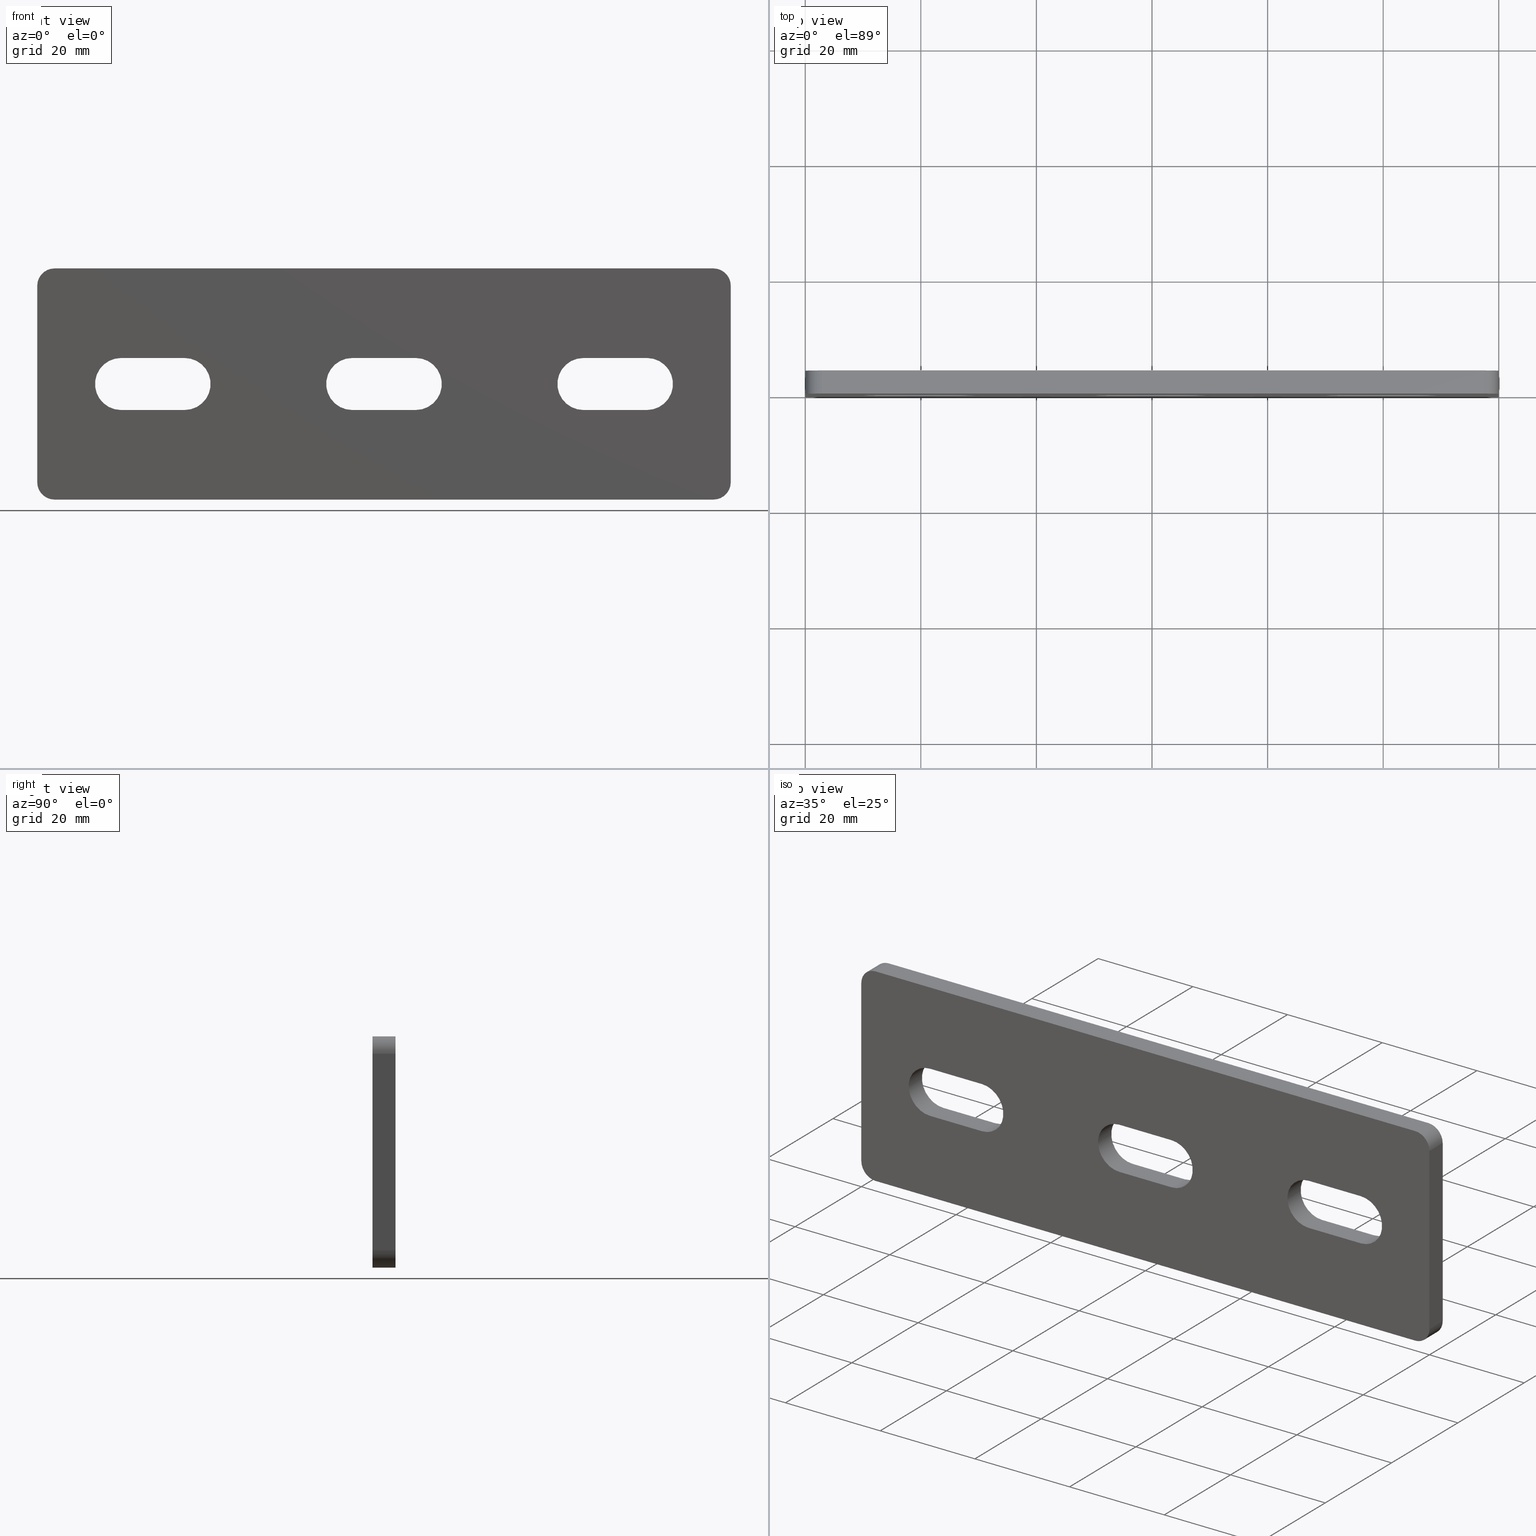
[diagram: canonical four-view strip — front | top / right | iso, engineering-drawing reading convention]
A machine part, canonical four-view strip (front | top / right | iso — engineering-drawing reading convention). The complete STEP part file that produces these views, byte-faithful:
ISO-10303-21;
HEADER;
/* Generated by software containing ST-Developer
 * from STEP Tools, Inc. (www.steptools.com) 
 */

FILE_DESCRIPTION(
/* description */ ('PIASTRA GIUNZIONE A 3 FORI ZINCATA '),
/* implementation_level */ '2;1');

FILE_NAME(
/* name */ 
'C:\\Users\\tecnico7\\Desktop\\NUOVI DISEGNI 3D\\DPSXX0001710.stp',
/* time_stamp */ '2022-11-21T10:47:58+01:00',
/* author */ ('tecnico7'),
/* organization */ (''),
/* preprocessor_version */ 'ST-DEVELOPER v18.1',
/* originating_system */ 'Autodesk Inventor 2022',
/* authorisation */ '');

FILE_SCHEMA (('AUTOMOTIVE_DESIGN { 1 0 10303 214 3 1 1 }'));
ENDSEC;

DATA;
#10=MECHANICAL_DESIGN_GEOMETRIC_PRESENTATION_REPRESENTATION('',(#13),#752);
#11=SHAPE_REPRESENTATION_RELATIONSHIP('SRR','None',#759,#12);
#12=ADVANCED_BREP_SHAPE_REPRESENTATION('',(#14),#751);
#13=STYLED_ITEM('',(#768),#14);
#14=MANIFOLD_SOLID_BREP('Solido1',#435);
#15=CYLINDRICAL_SURFACE('',#484,4.5);
#16=CYLINDRICAL_SURFACE('',#486,4.5);
#17=CYLINDRICAL_SURFACE('',#488,4.5);
#18=CYLINDRICAL_SURFACE('',#490,4.5);
#19=CYLINDRICAL_SURFACE('',#492,4.50000000000001);
#20=CYLINDRICAL_SURFACE('',#494,4.50000000000001);
#21=CYLINDRICAL_SURFACE('',#496,3.);
#22=CYLINDRICAL_SURFACE('',#497,3.);
#23=CYLINDRICAL_SURFACE('',#498,3.);
#24=CYLINDRICAL_SURFACE('',#499,3.);
#25=FACE_BOUND('',#54,.T.);
#26=FACE_BOUND('',#55,.T.);
#27=FACE_BOUND('',#56,.T.);
#28=FACE_BOUND('',#58,.T.);
#29=FACE_BOUND('',#59,.T.);
#30=FACE_BOUND('',#60,.T.);
#31=FACE_OUTER_BOUND('',#53,.T.);
#32=FACE_OUTER_BOUND('',#57,.T.);
#33=FACE_OUTER_BOUND('',#61,.T.);
#34=FACE_OUTER_BOUND('',#62,.T.);
#35=FACE_OUTER_BOUND('',#63,.T.);
#36=FACE_OUTER_BOUND('',#64,.T.);
#37=FACE_OUTER_BOUND('',#65,.T.);
#38=FACE_OUTER_BOUND('',#66,.T.);
#39=FACE_OUTER_BOUND('',#67,.T.);
#40=FACE_OUTER_BOUND('',#68,.T.);
#41=FACE_OUTER_BOUND('',#69,.T.);
#42=FACE_OUTER_BOUND('',#70,.T.);
#43=FACE_OUTER_BOUND('',#71,.T.);
#44=FACE_OUTER_BOUND('',#72,.T.);
#45=FACE_OUTER_BOUND('',#73,.T.);
#46=FACE_OUTER_BOUND('',#74,.T.);
#47=FACE_OUTER_BOUND('',#75,.T.);
#48=FACE_OUTER_BOUND('',#76,.T.);
#49=FACE_OUTER_BOUND('',#77,.T.);
#50=FACE_OUTER_BOUND('',#78,.T.);
#51=FACE_OUTER_BOUND('',#79,.T.);
#52=FACE_OUTER_BOUND('',#80,.T.);
#53=EDGE_LOOP('',(#281,#282,#283,#284,#285,#286,#287,#288));
#54=EDGE_LOOP('',(#289,#290,#291,#292));
#55=EDGE_LOOP('',(#293,#294,#295,#296));
#56=EDGE_LOOP('',(#297,#298,#299,#300));
#57=EDGE_LOOP('',(#301,#302,#303,#304,#305,#306,#307,#308));
#58=EDGE_LOOP('',(#309,#310,#311,#312));
#59=EDGE_LOOP('',(#313,#314,#315,#316));
#60=EDGE_LOOP('',(#317,#318,#319,#320));
#61=EDGE_LOOP('',(#321,#322,#323,#324));
#62=EDGE_LOOP('',(#325,#326,#327,#328));
#63=EDGE_LOOP('',(#329,#330,#331,#332));
#64=EDGE_LOOP('',(#333,#334,#335,#336));
#65=EDGE_LOOP('',(#337,#338,#339,#340));
#66=EDGE_LOOP('',(#341,#342,#343,#344));
#67=EDGE_LOOP('',(#345,#346,#347,#348));
#68=EDGE_LOOP('',(#349,#350,#351,#352));
#69=EDGE_LOOP('',(#353,#354,#355,#356));
#70=EDGE_LOOP('',(#357,#358,#359,#360));
#71=EDGE_LOOP('',(#361,#362,#363,#364));
#72=EDGE_LOOP('',(#365,#366,#367,#368));
#73=EDGE_LOOP('',(#369,#370,#371,#372));
#74=EDGE_LOOP('',(#373,#374,#375,#376));
#75=EDGE_LOOP('',(#377,#378,#379,#380));
#76=EDGE_LOOP('',(#381,#382,#383,#384));
#77=EDGE_LOOP('',(#385,#386,#387,#388));
#78=EDGE_LOOP('',(#389,#390,#391,#392));
#79=EDGE_LOOP('',(#393,#394,#395,#396));
#80=EDGE_LOOP('',(#397,#398,#399,#400));
#81=CIRCLE('',#459,3.);
#82=CIRCLE('',#460,3.);
#83=CIRCLE('',#461,3.);
#84=CIRCLE('',#462,3.);
#85=CIRCLE('',#463,4.5);
#86=CIRCLE('',#464,4.5);
#87=CIRCLE('',#465,4.50000000000001);
#88=CIRCLE('',#466,4.50000000000001);
#89=CIRCLE('',#467,4.5);
#90=CIRCLE('',#468,4.5);
#91=CIRCLE('',#470,3.);
#92=CIRCLE('',#471,3.);
#93=CIRCLE('',#472,3.);
#94=CIRCLE('',#473,3.);
#95=CIRCLE('',#474,4.5);
#96=CIRCLE('',#475,4.5);
#97=CIRCLE('',#476,4.50000000000001);
#98=CIRCLE('',#477,4.50000000000001);
#99=CIRCLE('',#478,4.5);
#100=CIRCLE('',#479,4.5);
#101=LINE('',#630,#141);
#102=LINE('',#634,#142);
#103=LINE('',#638,#143);
#104=LINE('',#642,#144);
#105=LINE('',#648,#145);
#106=LINE('',#651,#146);
#107=LINE('',#656,#147);
#108=LINE('',#659,#148);
#109=LINE('',#664,#149);
#110=LINE('',#667,#150);
#111=LINE('',#671,#151);
#112=LINE('',#675,#152);
#113=LINE('',#679,#153);
#114=LINE('',#683,#154);
#115=LINE('',#687,#155);
#116=LINE('',#691,#156);
#117=LINE('',#695,#157);
#118=LINE('',#699,#158);
#119=LINE('',#703,#159);
#120=LINE('',#707,#160);
#121=LINE('',#710,#161);
#122=LINE('',#711,#162);
#123=LINE('',#713,#163);
#124=LINE('',#714,#164);
#125=LINE('',#716,#165);
#126=LINE('',#717,#166);
#127=LINE('',#719,#167);
#128=LINE('',#720,#168);
#129=LINE('',#722,#169);
#130=LINE('',#723,#170);
#131=LINE('',#725,#171);
#132=LINE('',#727,#172);
#133=LINE('',#730,#173);
#134=LINE('',#731,#174);
#135=LINE('',#733,#175);
#136=LINE('',#735,#176);
#137=LINE('',#738,#177);
#138=LINE('',#739,#178);
#139=LINE('',#741,#179);
#140=LINE('',#743,#180);
#141=VECTOR('',#504,1000.);
#142=VECTOR('',#507,1000.);
#143=VECTOR('',#510,1000.);
#144=VECTOR('',#513,1000.);
#145=VECTOR('',#518,1000.);
#146=VECTOR('',#521,1000.);
#147=VECTOR('',#524,1000.);
#148=VECTOR('',#527,1000.);
#149=VECTOR('',#530,1000.);
#150=VECTOR('',#533,1000.);
#151=VECTOR('',#536,1000.);
#152=VECTOR('',#539,1000.);
#153=VECTOR('',#542,1000.);
#154=VECTOR('',#545,1000.);
#155=VECTOR('',#548,1000.);
#156=VECTOR('',#551,1000.);
#157=VECTOR('',#554,1000.);
#158=VECTOR('',#557,1000.);
#159=VECTOR('',#560,1000.);
#160=VECTOR('',#563,1000.);
#161=VECTOR('',#568,1000.);
#162=VECTOR('',#569,1000.);
#163=VECTOR('',#572,1000.);
#164=VECTOR('',#573,1000.);
#165=VECTOR('',#576,1000.);
#166=VECTOR('',#577,1000.);
#167=VECTOR('',#580,1000.);
#168=VECTOR('',#581,1000.);
#169=VECTOR('',#584,1000.);
#170=VECTOR('',#585,1000.);
#171=VECTOR('',#588,1000.);
#172=VECTOR('',#591,1000.);
#173=VECTOR('',#596,1000.);
#174=VECTOR('',#597,1000.);
#175=VECTOR('',#600,1000.);
#176=VECTOR('',#603,1000.);
#177=VECTOR('',#608,1000.);
#178=VECTOR('',#609,1000.);
#179=VECTOR('',#612,1000.);
#180=VECTOR('',#615,1000.);
#181=VERTEX_POINT('',#628);
#182=VERTEX_POINT('',#629);
#183=VERTEX_POINT('',#631);
#184=VERTEX_POINT('',#633);
#185=VERTEX_POINT('',#635);
#186=VERTEX_POINT('',#637);
#187=VERTEX_POINT('',#639);
#188=VERTEX_POINT('',#641);
#189=VERTEX_POINT('',#644);
#190=VERTEX_POINT('',#645);
#191=VERTEX_POINT('',#647);
#192=VERTEX_POINT('',#649);
#193=VERTEX_POINT('',#652);
#194=VERTEX_POINT('',#653);
#195=VERTEX_POINT('',#655);
#196=VERTEX_POINT('',#657);
#197=VERTEX_POINT('',#660);
#198=VERTEX_POINT('',#661);
#199=VERTEX_POINT('',#663);
#200=VERTEX_POINT('',#665);
#201=VERTEX_POINT('',#669);
#202=VERTEX_POINT('',#670);
#203=VERTEX_POINT('',#672);
#204=VERTEX_POINT('',#674);
#205=VERTEX_POINT('',#676);
#206=VERTEX_POINT('',#678);
#207=VERTEX_POINT('',#680);
#208=VERTEX_POINT('',#682);
#209=VERTEX_POINT('',#685);
#210=VERTEX_POINT('',#686);
#211=VERTEX_POINT('',#688);
#212=VERTEX_POINT('',#690);
#213=VERTEX_POINT('',#693);
#214=VERTEX_POINT('',#694);
#215=VERTEX_POINT('',#696);
#216=VERTEX_POINT('',#698);
#217=VERTEX_POINT('',#701);
#218=VERTEX_POINT('',#702);
#219=VERTEX_POINT('',#704);
#220=VERTEX_POINT('',#706);
#221=EDGE_CURVE('',#181,#182,#101,.T.);
#222=EDGE_CURVE('',#182,#183,#81,.T.);
#223=EDGE_CURVE('',#183,#184,#102,.T.);
#224=EDGE_CURVE('',#184,#185,#82,.T.);
#225=EDGE_CURVE('',#185,#186,#103,.T.);
#226=EDGE_CURVE('',#186,#187,#83,.T.);
#227=EDGE_CURVE('',#187,#188,#104,.T.);
#228=EDGE_CURVE('',#188,#181,#84,.T.);
#229=EDGE_CURVE('',#189,#190,#85,.T.);
#230=EDGE_CURVE('',#191,#189,#105,.T.);
#231=EDGE_CURVE('',#192,#191,#86,.T.);
#232=EDGE_CURVE('',#190,#192,#106,.T.);
#233=EDGE_CURVE('',#193,#194,#87,.T.);
#234=EDGE_CURVE('',#195,#193,#107,.T.);
#235=EDGE_CURVE('',#196,#195,#88,.T.);
#236=EDGE_CURVE('',#194,#196,#108,.T.);
#237=EDGE_CURVE('',#197,#198,#89,.T.);
#238=EDGE_CURVE('',#199,#197,#109,.T.);
#239=EDGE_CURVE('',#200,#199,#90,.T.);
#240=EDGE_CURVE('',#198,#200,#110,.T.);
#241=EDGE_CURVE('',#201,#202,#111,.T.);
#242=EDGE_CURVE('',#201,#203,#91,.T.);
#243=EDGE_CURVE('',#204,#203,#112,.T.);
#244=EDGE_CURVE('',#204,#205,#92,.T.);
#245=EDGE_CURVE('',#206,#205,#113,.T.);
#246=EDGE_CURVE('',#206,#207,#93,.T.);
#247=EDGE_CURVE('',#208,#207,#114,.T.);
#248=EDGE_CURVE('',#208,#202,#94,.T.);
#249=EDGE_CURVE('',#209,#210,#115,.T.);
#250=EDGE_CURVE('',#210,#211,#95,.T.);
#251=EDGE_CURVE('',#211,#212,#116,.T.);
#252=EDGE_CURVE('',#212,#209,#96,.T.);
#253=EDGE_CURVE('',#213,#214,#117,.T.);
#254=EDGE_CURVE('',#214,#215,#97,.T.);
#255=EDGE_CURVE('',#215,#216,#118,.T.);
#256=EDGE_CURVE('',#216,#213,#98,.T.);
#257=EDGE_CURVE('',#217,#218,#119,.T.);
#258=EDGE_CURVE('',#218,#219,#99,.T.);
#259=EDGE_CURVE('',#219,#220,#120,.T.);
#260=EDGE_CURVE('',#220,#217,#100,.T.);
#261=EDGE_CURVE('',#183,#201,#121,.T.);
#262=EDGE_CURVE('',#202,#184,#122,.T.);
#263=EDGE_CURVE('',#207,#186,#123,.T.);
#264=EDGE_CURVE('',#185,#208,#124,.T.);
#265=EDGE_CURVE('',#205,#188,#125,.T.);
#266=EDGE_CURVE('',#187,#206,#126,.T.);
#267=EDGE_CURVE('',#203,#182,#127,.T.);
#268=EDGE_CURVE('',#181,#204,#128,.T.);
#269=EDGE_CURVE('',#189,#210,#129,.T.);
#270=EDGE_CURVE('',#190,#211,#130,.T.);
#271=EDGE_CURVE('',#192,#212,#131,.T.);
#272=EDGE_CURVE('',#191,#209,#132,.T.);
#273=EDGE_CURVE('',#197,#218,#133,.T.);
#274=EDGE_CURVE('',#198,#219,#134,.T.);
#275=EDGE_CURVE('',#200,#220,#135,.T.);
#276=EDGE_CURVE('',#199,#217,#136,.T.);
#277=EDGE_CURVE('',#193,#214,#137,.T.);
#278=EDGE_CURVE('',#194,#215,#138,.T.);
#279=EDGE_CURVE('',#196,#216,#139,.T.);
#280=EDGE_CURVE('',#195,#213,#140,.T.);
#281=ORIENTED_EDGE('',*,*,#221,.T.);
#282=ORIENTED_EDGE('',*,*,#222,.T.);
#283=ORIENTED_EDGE('',*,*,#223,.T.);
#284=ORIENTED_EDGE('',*,*,#224,.T.);
#285=ORIENTED_EDGE('',*,*,#225,.T.);
#286=ORIENTED_EDGE('',*,*,#226,.T.);
#287=ORIENTED_EDGE('',*,*,#227,.T.);
#288=ORIENTED_EDGE('',*,*,#228,.T.);
#289=ORIENTED_EDGE('',*,*,#229,.F.);
#290=ORIENTED_EDGE('',*,*,#230,.F.);
#291=ORIENTED_EDGE('',*,*,#231,.F.);
#292=ORIENTED_EDGE('',*,*,#232,.F.);
#293=ORIENTED_EDGE('',*,*,#233,.F.);
#294=ORIENTED_EDGE('',*,*,#234,.F.);
#295=ORIENTED_EDGE('',*,*,#235,.F.);
#296=ORIENTED_EDGE('',*,*,#236,.F.);
#297=ORIENTED_EDGE('',*,*,#237,.F.);
#298=ORIENTED_EDGE('',*,*,#238,.F.);
#299=ORIENTED_EDGE('',*,*,#239,.F.);
#300=ORIENTED_EDGE('',*,*,#240,.F.);
#301=ORIENTED_EDGE('',*,*,#241,.F.);
#302=ORIENTED_EDGE('',*,*,#242,.T.);
#303=ORIENTED_EDGE('',*,*,#243,.F.);
#304=ORIENTED_EDGE('',*,*,#244,.T.);
#305=ORIENTED_EDGE('',*,*,#245,.F.);
#306=ORIENTED_EDGE('',*,*,#246,.T.);
#307=ORIENTED_EDGE('',*,*,#247,.F.);
#308=ORIENTED_EDGE('',*,*,#248,.T.);
#309=ORIENTED_EDGE('',*,*,#249,.T.);
#310=ORIENTED_EDGE('',*,*,#250,.T.);
#311=ORIENTED_EDGE('',*,*,#251,.T.);
#312=ORIENTED_EDGE('',*,*,#252,.T.);
#313=ORIENTED_EDGE('',*,*,#253,.T.);
#314=ORIENTED_EDGE('',*,*,#254,.T.);
#315=ORIENTED_EDGE('',*,*,#255,.T.);
#316=ORIENTED_EDGE('',*,*,#256,.T.);
#317=ORIENTED_EDGE('',*,*,#257,.T.);
#318=ORIENTED_EDGE('',*,*,#258,.T.);
#319=ORIENTED_EDGE('',*,*,#259,.T.);
#320=ORIENTED_EDGE('',*,*,#260,.T.);
#321=ORIENTED_EDGE('',*,*,#223,.F.);
#322=ORIENTED_EDGE('',*,*,#261,.T.);
#323=ORIENTED_EDGE('',*,*,#241,.T.);
#324=ORIENTED_EDGE('',*,*,#262,.T.);
#325=ORIENTED_EDGE('',*,*,#247,.T.);
#326=ORIENTED_EDGE('',*,*,#263,.T.);
#327=ORIENTED_EDGE('',*,*,#225,.F.);
#328=ORIENTED_EDGE('',*,*,#264,.T.);
#329=ORIENTED_EDGE('',*,*,#245,.T.);
#330=ORIENTED_EDGE('',*,*,#265,.T.);
#331=ORIENTED_EDGE('',*,*,#227,.F.);
#332=ORIENTED_EDGE('',*,*,#266,.T.);
#333=ORIENTED_EDGE('',*,*,#243,.T.);
#334=ORIENTED_EDGE('',*,*,#267,.T.);
#335=ORIENTED_EDGE('',*,*,#221,.F.);
#336=ORIENTED_EDGE('',*,*,#268,.T.);
#337=ORIENTED_EDGE('',*,*,#250,.F.);
#338=ORIENTED_EDGE('',*,*,#269,.F.);
#339=ORIENTED_EDGE('',*,*,#229,.T.);
#340=ORIENTED_EDGE('',*,*,#270,.T.);
#341=ORIENTED_EDGE('',*,*,#251,.F.);
#342=ORIENTED_EDGE('',*,*,#270,.F.);
#343=ORIENTED_EDGE('',*,*,#232,.T.);
#344=ORIENTED_EDGE('',*,*,#271,.T.);
#345=ORIENTED_EDGE('',*,*,#252,.F.);
#346=ORIENTED_EDGE('',*,*,#271,.F.);
#347=ORIENTED_EDGE('',*,*,#231,.T.);
#348=ORIENTED_EDGE('',*,*,#272,.T.);
#349=ORIENTED_EDGE('',*,*,#249,.F.);
#350=ORIENTED_EDGE('',*,*,#272,.F.);
#351=ORIENTED_EDGE('',*,*,#230,.T.);
#352=ORIENTED_EDGE('',*,*,#269,.T.);
#353=ORIENTED_EDGE('',*,*,#258,.F.);
#354=ORIENTED_EDGE('',*,*,#273,.F.);
#355=ORIENTED_EDGE('',*,*,#237,.T.);
#356=ORIENTED_EDGE('',*,*,#274,.T.);
#357=ORIENTED_EDGE('',*,*,#259,.F.);
#358=ORIENTED_EDGE('',*,*,#274,.F.);
#359=ORIENTED_EDGE('',*,*,#240,.T.);
#360=ORIENTED_EDGE('',*,*,#275,.T.);
#361=ORIENTED_EDGE('',*,*,#260,.F.);
#362=ORIENTED_EDGE('',*,*,#275,.F.);
#363=ORIENTED_EDGE('',*,*,#239,.T.);
#364=ORIENTED_EDGE('',*,*,#276,.T.);
#365=ORIENTED_EDGE('',*,*,#257,.F.);
#366=ORIENTED_EDGE('',*,*,#276,.F.);
#367=ORIENTED_EDGE('',*,*,#238,.T.);
#368=ORIENTED_EDGE('',*,*,#273,.T.);
#369=ORIENTED_EDGE('',*,*,#254,.F.);
#370=ORIENTED_EDGE('',*,*,#277,.F.);
#371=ORIENTED_EDGE('',*,*,#233,.T.);
#372=ORIENTED_EDGE('',*,*,#278,.T.);
#373=ORIENTED_EDGE('',*,*,#255,.F.);
#374=ORIENTED_EDGE('',*,*,#278,.F.);
#375=ORIENTED_EDGE('',*,*,#236,.T.);
#376=ORIENTED_EDGE('',*,*,#279,.T.);
#377=ORIENTED_EDGE('',*,*,#256,.F.);
#378=ORIENTED_EDGE('',*,*,#279,.F.);
#379=ORIENTED_EDGE('',*,*,#235,.T.);
#380=ORIENTED_EDGE('',*,*,#280,.T.);
#381=ORIENTED_EDGE('',*,*,#253,.F.);
#382=ORIENTED_EDGE('',*,*,#280,.F.);
#383=ORIENTED_EDGE('',*,*,#234,.T.);
#384=ORIENTED_EDGE('',*,*,#277,.T.);
#385=ORIENTED_EDGE('',*,*,#222,.F.);
#386=ORIENTED_EDGE('',*,*,#267,.F.);
#387=ORIENTED_EDGE('',*,*,#242,.F.);
#388=ORIENTED_EDGE('',*,*,#261,.F.);
#389=ORIENTED_EDGE('',*,*,#228,.F.);
#390=ORIENTED_EDGE('',*,*,#265,.F.);
#391=ORIENTED_EDGE('',*,*,#244,.F.);
#392=ORIENTED_EDGE('',*,*,#268,.F.);
#393=ORIENTED_EDGE('',*,*,#226,.F.);
#394=ORIENTED_EDGE('',*,*,#263,.F.);
#395=ORIENTED_EDGE('',*,*,#246,.F.);
#396=ORIENTED_EDGE('',*,*,#266,.F.);
#397=ORIENTED_EDGE('',*,*,#224,.F.);
#398=ORIENTED_EDGE('',*,*,#262,.F.);
#399=ORIENTED_EDGE('',*,*,#248,.F.);
#400=ORIENTED_EDGE('',*,*,#264,.F.);
#401=PLANE('',#458);
#402=PLANE('',#469);
#403=PLANE('',#480);
#404=PLANE('',#481);
#405=PLANE('',#482);
#406=PLANE('',#483);
#407=PLANE('',#485);
#408=PLANE('',#487);
#409=PLANE('',#489);
#410=PLANE('',#491);
#411=PLANE('',#493);
#412=PLANE('',#495);
#413=ADVANCED_FACE('',(#31,#25,#26,#27),#401,.F.);
#414=ADVANCED_FACE('',(#32,#28,#29,#30),#402,.T.);
#415=ADVANCED_FACE('',(#33),#403,.F.);
#416=ADVANCED_FACE('',(#34),#404,.F.);
#417=ADVANCED_FACE('',(#35),#405,.F.);
#418=ADVANCED_FACE('',(#36),#406,.F.);
#419=ADVANCED_FACE('',(#37),#15,.F.);
#420=ADVANCED_FACE('',(#38),#407,.T.);
#421=ADVANCED_FACE('',(#39),#16,.F.);
#422=ADVANCED_FACE('',(#40),#408,.T.);
#423=ADVANCED_FACE('',(#41),#17,.F.);
#424=ADVANCED_FACE('',(#42),#409,.T.);
#425=ADVANCED_FACE('',(#43),#18,.F.);
#426=ADVANCED_FACE('',(#44),#410,.T.);
#427=ADVANCED_FACE('',(#45),#19,.F.);
#428=ADVANCED_FACE('',(#46),#411,.T.);
#429=ADVANCED_FACE('',(#47),#20,.F.);
#430=ADVANCED_FACE('',(#48),#412,.T.);
#431=ADVANCED_FACE('',(#49),#21,.T.);
#432=ADVANCED_FACE('',(#50),#22,.T.);
#433=ADVANCED_FACE('',(#51),#23,.T.);
#434=ADVANCED_FACE('',(#52),#24,.T.);
#435=CLOSED_SHELL('',(#413,#414,#415,#416,#417,#418,#419,#420,#421,#422,
#423,#424,#425,#426,#427,#428,#429,#430,#431,#432,#433,#434));
#436=DERIVED_UNIT_ELEMENT(#439,1.);
#437=DERIVED_UNIT_ELEMENT(#754,-3.);
#438=DIMENSIONAL_EXPONENTS(1.,0.,0.,0.,0.,0.,0.);
#439=(
CONVERSION_BASED_UNIT('gram',#441)
MASS_UNIT()
NAMED_UNIT(#438)
);
#440=(
MASS_UNIT()
NAMED_UNIT(*)
SI_UNIT(.KILO.,.GRAM.)
);
#441=MASS_MEASURE_WITH_UNIT(MASS_MEASURE(0.001),#440);
#442=DERIVED_UNIT((#436,#437));
#443=MEASURE_REPRESENTATION_ITEM('density measure',
POSITIVE_RATIO_MEASURE(1.),#442);
#444=PROPERTY_DEFINITION_REPRESENTATION(#449,#446);
#445=PROPERTY_DEFINITION_REPRESENTATION(#450,#447);
#446=REPRESENTATION('material name',(#448),#751);
#447=REPRESENTATION('density',(#443),#751);
#448=DESCRIPTIVE_REPRESENTATION_ITEM('Generico','Generico');
#449=PROPERTY_DEFINITION('material property','material name',#761);
#450=PROPERTY_DEFINITION('material property','density of part',#761);
#451=DATE_TIME_ROLE('creation_date');
#452=APPLIED_DATE_AND_TIME_ASSIGNMENT(#453,#451,(#761));
#453=DATE_AND_TIME(#454,#455);
#454=CALENDAR_DATE(2015,7,10);
#455=LOCAL_TIME(0,0,0.,#456);
#456=COORDINATED_UNIVERSAL_TIME_OFFSET(0,0,.BEHIND.);
#457=AXIS2_PLACEMENT_3D('placement',#626,#500,#501);
#458=AXIS2_PLACEMENT_3D('',#627,#502,#503);
#459=AXIS2_PLACEMENT_3D('',#632,#505,#506);
#460=AXIS2_PLACEMENT_3D('',#636,#508,#509);
#461=AXIS2_PLACEMENT_3D('',#640,#511,#512);
#462=AXIS2_PLACEMENT_3D('',#643,#514,#515);
#463=AXIS2_PLACEMENT_3D('',#646,#516,#517);
#464=AXIS2_PLACEMENT_3D('',#650,#519,#520);
#465=AXIS2_PLACEMENT_3D('',#654,#522,#523);
#466=AXIS2_PLACEMENT_3D('',#658,#525,#526);
#467=AXIS2_PLACEMENT_3D('',#662,#528,#529);
#468=AXIS2_PLACEMENT_3D('',#666,#531,#532);
#469=AXIS2_PLACEMENT_3D('',#668,#534,#535);
#470=AXIS2_PLACEMENT_3D('',#673,#537,#538);
#471=AXIS2_PLACEMENT_3D('',#677,#540,#541);
#472=AXIS2_PLACEMENT_3D('',#681,#543,#544);
#473=AXIS2_PLACEMENT_3D('',#684,#546,#547);
#474=AXIS2_PLACEMENT_3D('',#689,#549,#550);
#475=AXIS2_PLACEMENT_3D('',#692,#552,#553);
#476=AXIS2_PLACEMENT_3D('',#697,#555,#556);
#477=AXIS2_PLACEMENT_3D('',#700,#558,#559);
#478=AXIS2_PLACEMENT_3D('',#705,#561,#562);
#479=AXIS2_PLACEMENT_3D('',#708,#564,#565);
#480=AXIS2_PLACEMENT_3D('',#709,#566,#567);
#481=AXIS2_PLACEMENT_3D('',#712,#570,#571);
#482=AXIS2_PLACEMENT_3D('',#715,#574,#575);
#483=AXIS2_PLACEMENT_3D('',#718,#578,#579);
#484=AXIS2_PLACEMENT_3D('',#721,#582,#583);
#485=AXIS2_PLACEMENT_3D('',#724,#586,#587);
#486=AXIS2_PLACEMENT_3D('',#726,#589,#590);
#487=AXIS2_PLACEMENT_3D('',#728,#592,#593);
#488=AXIS2_PLACEMENT_3D('',#729,#594,#595);
#489=AXIS2_PLACEMENT_3D('',#732,#598,#599);
#490=AXIS2_PLACEMENT_3D('',#734,#601,#602);
#491=AXIS2_PLACEMENT_3D('',#736,#604,#605);
#492=AXIS2_PLACEMENT_3D('',#737,#606,#607);
#493=AXIS2_PLACEMENT_3D('',#740,#610,#611);
#494=AXIS2_PLACEMENT_3D('',#742,#613,#614);
#495=AXIS2_PLACEMENT_3D('',#744,#616,#617);
#496=AXIS2_PLACEMENT_3D('',#745,#618,#619);
#497=AXIS2_PLACEMENT_3D('',#746,#620,#621);
#498=AXIS2_PLACEMENT_3D('',#747,#622,#623);
#499=AXIS2_PLACEMENT_3D('',#748,#624,#625);
#500=DIRECTION('axis',(0.,0.,1.));
#501=DIRECTION('refdir',(1.,0.,0.));
#502=DIRECTION('center_axis',(-5.66993775627602E-31,-1.,0.));
#503=DIRECTION('ref_axis',(0.,0.,-1.));
#504=DIRECTION('',(-1.,-4.93038065763132E-31,4.93038065763132E-32));
#505=DIRECTION('center_axis',(5.66993775627602E-31,1.,0.));
#506=DIRECTION('ref_axis',(0.,0.,-1.));
#507=DIRECTION('',(0.,0.,1.));
#508=DIRECTION('center_axis',(5.66993775627602E-31,1.,0.));
#509=DIRECTION('ref_axis',(0.,0.,-1.));
#510=DIRECTION('',(1.,4.93038065763132E-31,-4.93038065763132E-32));
#511=DIRECTION('center_axis',(5.66993775627602E-31,1.,0.));
#512=DIRECTION('ref_axis',(0.,0.,-1.));
#513=DIRECTION('',(0.,0.,-1.));
#514=DIRECTION('center_axis',(5.66993775627602E-31,1.,0.));
#515=DIRECTION('ref_axis',(0.,0.,-1.));
#516=DIRECTION('center_axis',(5.66993775627602E-31,1.,0.));
#517=DIRECTION('ref_axis',(0.,0.,1.));
#518=DIRECTION('',(1.,4.93038065763132E-31,-4.93038065763132E-32));
#519=DIRECTION('center_axis',(5.66993775627602E-31,1.,0.));
#520=DIRECTION('ref_axis',(0.,0.,1.));
#521=DIRECTION('',(-1.,-4.93038065763132E-31,4.93038065763132E-32));
#522=DIRECTION('center_axis',(5.66993775627602E-31,1.,0.));
#523=DIRECTION('ref_axis',(0.,0.,1.));
#524=DIRECTION('',(1.,4.93038065763132E-31,-4.93038065763132E-32));
#525=DIRECTION('center_axis',(5.66993775627602E-31,1.,0.));
#526=DIRECTION('ref_axis',(0.,0.,1.));
#527=DIRECTION('',(-1.,-4.93038065763132E-31,4.93038065763132E-32));
#528=DIRECTION('center_axis',(5.66993775627602E-31,1.,0.));
#529=DIRECTION('ref_axis',(0.,0.,-1.));
#530=DIRECTION('',(-1.,-4.93038065763132E-31,4.93038065763132E-32));
#531=DIRECTION('center_axis',(5.66993775627602E-31,1.,0.));
#532=DIRECTION('ref_axis',(0.,0.,-1.));
#533=DIRECTION('',(1.,4.93038065763132E-31,-4.93038065763132E-32));
#534=DIRECTION('center_axis',(-5.66993775627602E-31,-1.,0.));
#535=DIRECTION('ref_axis',(0.,0.,-1.));
#536=DIRECTION('',(0.,0.,1.));
#537=DIRECTION('center_axis',(-5.66993775627602E-31,-1.,0.));
#538=DIRECTION('ref_axis',(0.,0.,-1.));
#539=DIRECTION('',(-1.,-4.93038065763132E-31,4.93038065763132E-32));
#540=DIRECTION('center_axis',(-5.66993775627602E-31,-1.,0.));
#541=DIRECTION('ref_axis',(0.,0.,-1.));
#542=DIRECTION('',(0.,0.,-1.));
#543=DIRECTION('center_axis',(-5.66993775627602E-31,-1.,0.));
#544=DIRECTION('ref_axis',(0.,0.,-1.));
#545=DIRECTION('',(1.,4.93038065763132E-31,-4.93038065763132E-32));
#546=DIRECTION('center_axis',(-5.66993775627602E-31,-1.,0.));
#547=DIRECTION('ref_axis',(0.,0.,-1.));
#548=DIRECTION('',(1.,4.93038065763132E-31,-4.93038065763132E-32));
#549=DIRECTION('center_axis',(5.66993775627602E-31,1.,0.));
#550=DIRECTION('ref_axis',(0.,0.,1.));
#551=DIRECTION('',(-1.,-4.93038065763132E-31,4.93038065763132E-32));
#552=DIRECTION('center_axis',(5.66993775627602E-31,1.,0.));
#553=DIRECTION('ref_axis',(0.,0.,1.));
#554=DIRECTION('',(1.,4.93038065763132E-31,-4.93038065763132E-32));
#555=DIRECTION('center_axis',(5.66993775627602E-31,1.,0.));
#556=DIRECTION('ref_axis',(0.,0.,1.));
#557=DIRECTION('',(-1.,-4.93038065763132E-31,4.93038065763132E-32));
#558=DIRECTION('center_axis',(5.66993775627602E-31,1.,0.));
#559=DIRECTION('ref_axis',(0.,0.,1.));
#560=DIRECTION('',(-1.,-4.93038065763132E-31,4.93038065763132E-32));
#561=DIRECTION('center_axis',(5.66993775627602E-31,1.,0.));
#562=DIRECTION('ref_axis',(0.,0.,-1.));
#563=DIRECTION('',(1.,4.93038065763132E-31,-4.93038065763132E-32));
#564=DIRECTION('center_axis',(5.66993775627602E-31,1.,0.));
#565=DIRECTION('ref_axis',(0.,0.,-1.));
#566=DIRECTION('center_axis',(1.,4.93038065763132E-31,0.));
#567=DIRECTION('ref_axis',(0.,0.,-1.));
#568=DIRECTION('',(-5.66993775627602E-31,-1.,0.));
#569=DIRECTION('',(5.66993775627602E-31,1.,0.));
#570=DIRECTION('center_axis',(-4.93038065763132E-32,-2.43086534291451E-62,
-1.));
#571=DIRECTION('ref_axis',(-1.,-4.93038065763132E-31,4.93038065763132E-32));
#572=DIRECTION('',(5.66993775627602E-31,1.,0.));
#573=DIRECTION('',(-5.66993775627602E-31,-1.,0.));
#574=DIRECTION('center_axis',(-1.,-4.93038065763132E-31,0.));
#575=DIRECTION('ref_axis',(0.,0.,1.));
#576=DIRECTION('',(5.66993775627602E-31,1.,0.));
#577=DIRECTION('',(-5.66993775627602E-31,-1.,0.));
#578=DIRECTION('center_axis',(4.93038065763132E-32,2.43086534291451E-62,
1.));
#579=DIRECTION('ref_axis',(1.,4.93038065763132E-31,-4.93038065763132E-32));
#580=DIRECTION('',(5.66993775627602E-31,1.,0.));
#581=DIRECTION('',(-5.66993775627602E-31,-1.,0.));
#582=DIRECTION('center_axis',(-5.66993775627602E-31,-1.,0.));
#583=DIRECTION('ref_axis',(0.,0.,-1.));
#584=DIRECTION('',(-5.66993775627602E-31,-1.,0.));
#585=DIRECTION('',(-5.66993775627602E-31,-1.,0.));
#586=DIRECTION('center_axis',(4.93038065763132E-32,2.43086534291451E-62,
1.));
#587=DIRECTION('ref_axis',(1.,4.93038065763132E-31,-4.93038065763132E-32));
#588=DIRECTION('',(-5.66993775627602E-31,-1.,0.));
#589=DIRECTION('center_axis',(-5.66993775627602E-31,-1.,0.));
#590=DIRECTION('ref_axis',(0.,0.,-1.));
#591=DIRECTION('',(-5.66993775627602E-31,-1.,0.));
#592=DIRECTION('center_axis',(-4.93038065763132E-32,-2.43086534291451E-62,
-1.));
#593=DIRECTION('ref_axis',(-1.,-4.93038065763132E-31,4.93038065763132E-32));
#594=DIRECTION('center_axis',(-5.66993775627602E-31,-1.,0.));
#595=DIRECTION('ref_axis',(0.,0.,-1.));
#596=DIRECTION('',(-5.66993775627602E-31,-1.,0.));
#597=DIRECTION('',(-5.66993775627602E-31,-1.,0.));
#598=DIRECTION('center_axis',(-4.93038065763132E-32,-2.43086534291451E-62,
-1.));
#599=DIRECTION('ref_axis',(-1.,-4.93038065763132E-31,4.93038065763132E-32));
#600=DIRECTION('',(-5.66993775627602E-31,-1.,0.));
#601=DIRECTION('center_axis',(-5.66993775627602E-31,-1.,0.));
#602=DIRECTION('ref_axis',(0.,0.,-1.));
#603=DIRECTION('',(-5.66993775627602E-31,-1.,0.));
#604=DIRECTION('center_axis',(4.93038065763132E-32,2.43086534291451E-62,
1.));
#605=DIRECTION('ref_axis',(1.,4.93038065763132E-31,-4.93038065763132E-32));
#606=DIRECTION('center_axis',(-5.66993775627602E-31,-1.,0.));
#607=DIRECTION('ref_axis',(0.,0.,-1.));
#608=DIRECTION('',(-5.66993775627602E-31,-1.,0.));
#609=DIRECTION('',(-5.66993775627602E-31,-1.,0.));
#610=DIRECTION('center_axis',(4.93038065763132E-32,2.43086534291451E-62,
1.));
#611=DIRECTION('ref_axis',(1.,4.93038065763132E-31,-4.93038065763132E-32));
#612=DIRECTION('',(-5.66993775627602E-31,-1.,0.));
#613=DIRECTION('center_axis',(-5.66993775627602E-31,-1.,0.));
#614=DIRECTION('ref_axis',(0.,0.,-1.));
#615=DIRECTION('',(-5.66993775627602E-31,-1.,0.));
#616=DIRECTION('center_axis',(-4.93038065763132E-32,-2.43086534291451E-62,
-1.));
#617=DIRECTION('ref_axis',(-1.,-4.93038065763132E-31,4.93038065763132E-32));
#618=DIRECTION('center_axis',(-5.66993775627602E-31,-1.,0.));
#619=DIRECTION('ref_axis',(0.,0.,-1.));
#620=DIRECTION('center_axis',(-5.66993775627602E-31,-1.,0.));
#621=DIRECTION('ref_axis',(0.,0.,-1.));
#622=DIRECTION('center_axis',(-5.66993775627602E-31,-1.,0.));
#623=DIRECTION('ref_axis',(0.,0.,-1.));
#624=DIRECTION('center_axis',(-5.66993775627602E-31,-1.,0.));
#625=DIRECTION('ref_axis',(0.,0.,-1.));
#626=CARTESIAN_POINT('',(0.,0.,0.));
#627=CARTESIAN_POINT('Origin',(-59.9999999999987,3.99999999999978,-20.));
#628=CARTESIAN_POINT('',(56.9999999999986,3.99999999999978,-20.));
#629=CARTESIAN_POINT('',(-56.9999999999986,3.99999999999978,-20.0000000000002));
#630=CARTESIAN_POINT('',(-59.9999999999987,3.99999999999978,-20.));
#631=CARTESIAN_POINT('',(-59.9999999999987,3.99999999999934,-17.0000000000001));
#632=CARTESIAN_POINT('Origin',(-56.9999999999986,4.,-17.0000000000001));
#633=CARTESIAN_POINT('',(-59.9999999999987,4.,16.9999999999999));
#634=CARTESIAN_POINT('',(-59.9999999999987,4.,20.));
#635=CARTESIAN_POINT('',(-56.9999999999986,4.,20.));
#636=CARTESIAN_POINT('Origin',(-56.9999999999986,4.,16.9999999999999));
#637=CARTESIAN_POINT('',(56.9999999999986,3.99999999999978,20.));
#638=CARTESIAN_POINT('',(-59.9999999999987,4.,20.));
#639=CARTESIAN_POINT('',(59.9999999999987,3.99999999999978,16.9999999999999));
#640=CARTESIAN_POINT('Origin',(56.9999999999986,3.99999999999978,16.9999999999999));
#641=CARTESIAN_POINT('',(59.9999999999987,3.99999999999978,-17.0000000000001));
#642=CARTESIAN_POINT('',(59.9999999999987,3.99999999999978,20.));
#643=CARTESIAN_POINT('Origin',(56.9999999999986,3.99999999999978,-17.0000000000001));
#644=CARTESIAN_POINT('',(-34.5000000000013,3.99999999999978,4.49999999999973));
#645=CARTESIAN_POINT('',(-34.5000000000013,4.,-4.49999999999995));
#646=CARTESIAN_POINT('Origin',(-34.5000000000013,4.,0.));
#647=CARTESIAN_POINT('',(-45.5000000000005,3.99999999999978,4.49999999999973));
#648=CARTESIAN_POINT('',(-45.5000000000005,3.99999999999978,4.49999999999973));
#649=CARTESIAN_POINT('',(-45.5000000000005,4.,-4.49999999999995));
#650=CARTESIAN_POINT('Origin',(-45.5000000000005,4.,-6.66133814775094E-13));
#651=CARTESIAN_POINT('',(-34.5000000000013,4.,-4.49999999999995));
#652=CARTESIAN_POINT('',(5.50000000000139,3.99999999999978,4.49999999999973));
#653=CARTESIAN_POINT('',(5.50000000000139,4.,-4.49999999999995));
#654=CARTESIAN_POINT('Origin',(5.50000000000139,4.,0.));
#655=CARTESIAN_POINT('',(-5.50000000000139,3.99999999999978,4.49999999999973));
#656=CARTESIAN_POINT('',(-5.50000000000139,3.99999999999978,4.49999999999973));
#657=CARTESIAN_POINT('',(-5.50000000000139,4.,-4.49999999999995));
#658=CARTESIAN_POINT('Origin',(-5.50000000000139,4.,0.));
#659=CARTESIAN_POINT('',(5.50000000000139,4.,-4.49999999999995));
#660=CARTESIAN_POINT('',(34.5000000000013,4.,-4.49999999999995));
#661=CARTESIAN_POINT('',(34.5000000000013,3.99999999999978,4.49999999999973));
#662=CARTESIAN_POINT('Origin',(34.5000000000013,3.99999999999978,-6.66133814775094E-13));
#663=CARTESIAN_POINT('',(45.5000000000005,4.,-4.49999999999995));
#664=CARTESIAN_POINT('',(34.5000000000013,4.,-4.49999999999995));
#665=CARTESIAN_POINT('',(45.5000000000005,3.99999999999978,4.49999999999973));
#666=CARTESIAN_POINT('Origin',(45.5000000000005,3.99999999999978,-6.66133814775094E-13));
#667=CARTESIAN_POINT('',(45.5000000000005,3.99999999999978,4.49999999999973));
#668=CARTESIAN_POINT('Origin',(-59.9999999999987,0.,-20.));
#669=CARTESIAN_POINT('',(-59.9999999999987,0.,-16.9999999999999));
#670=CARTESIAN_POINT('',(-59.9999999999987,-4.44089209850063E-13,16.9999999999992));
#671=CARTESIAN_POINT('',(-59.9999999999987,0.,19.9999999999998));
#672=CARTESIAN_POINT('',(-56.9999999999986,0.,-20.0000000000002));
#673=CARTESIAN_POINT('Origin',(-56.9999999999986,-4.44089209850063E-13,
-17.0000000000006));
#674=CARTESIAN_POINT('',(56.9999999999986,-2.22044604925031E-13,-20.0000000000005));
#675=CARTESIAN_POINT('',(-59.9999999999987,0.,-20.));
#676=CARTESIAN_POINT('',(59.9999999999987,0.,-17.0000000000001));
#677=CARTESIAN_POINT('Origin',(56.9999999999986,0.,-17.0000000000001));
#678=CARTESIAN_POINT('',(59.9999999999987,-2.22044604925031E-13,16.9999999999995));
#679=CARTESIAN_POINT('',(59.9999999999987,-2.22044604925031E-13,20.));
#680=CARTESIAN_POINT('',(56.9999999999986,-2.22044604925031E-13,20.));
#681=CARTESIAN_POINT('Origin',(56.9999999999986,0.,16.9999999999997));
#682=CARTESIAN_POINT('',(-56.9999999999986,0.,19.9999999999998));
#683=CARTESIAN_POINT('',(-59.9999999999987,0.,19.9999999999998));
#684=CARTESIAN_POINT('Origin',(-56.9999999999986,-4.44089209850063E-13,
16.9999999999992));
#685=CARTESIAN_POINT('',(-45.5000000000005,0.,4.49999999999928));
#686=CARTESIAN_POINT('',(-34.5000000000013,0.,4.49999999999928));
#687=CARTESIAN_POINT('',(-45.5000000000005,0.,4.49999999999928));
#688=CARTESIAN_POINT('',(-34.5000000000013,0.,-4.50000000000017));
#689=CARTESIAN_POINT('Origin',(-34.5000000000013,0.,0.));
#690=CARTESIAN_POINT('',(-45.5000000000005,0.,-4.50000000000017));
#691=CARTESIAN_POINT('',(-34.5000000000013,0.,-4.50000000000017));
#692=CARTESIAN_POINT('Origin',(-45.5000000000005,0.,0.));
#693=CARTESIAN_POINT('',(-5.50000000000139,4.44089209850063E-13,4.4999999999995));
#694=CARTESIAN_POINT('',(5.50000000000139,4.44089209850063E-13,4.4999999999995));
#695=CARTESIAN_POINT('',(-5.50000000000139,4.44089209850063E-13,4.4999999999995));
#696=CARTESIAN_POINT('',(5.50000000000139,0.,-4.50000000000017));
#697=CARTESIAN_POINT('Origin',(5.50000000000139,0.,0.));
#698=CARTESIAN_POINT('',(-5.50000000000139,0.,-4.50000000000017));
#699=CARTESIAN_POINT('',(5.50000000000139,0.,-4.50000000000017));
#700=CARTESIAN_POINT('Origin',(-5.50000000000139,0.,0.));
#701=CARTESIAN_POINT('',(45.5000000000005,4.44089209850063E-13,-4.50000000000039));
#702=CARTESIAN_POINT('',(34.5000000000013,2.22044604925031E-13,-4.50000000000061));
#703=CARTESIAN_POINT('',(34.5000000000013,2.22044604925031E-13,-4.50000000000061));
#704=CARTESIAN_POINT('',(34.5000000000013,4.44089209850063E-13,4.4999999999995));
#705=CARTESIAN_POINT('Origin',(34.5000000000013,0.,0.));
#706=CARTESIAN_POINT('',(45.5000000000005,4.44089209850063E-13,4.4999999999995));
#707=CARTESIAN_POINT('',(45.5000000000005,4.44089209850063E-13,4.4999999999995));
#708=CARTESIAN_POINT('Origin',(45.5000000000005,0.,0.));
#709=CARTESIAN_POINT('Origin',(-59.9999999999987,4.,20.));
#710=CARTESIAN_POINT('',(-59.9999999999987,3.99999999999934,-17.0000000000001));
#711=CARTESIAN_POINT('',(-59.9999999999987,4.,16.9999999999999));
#712=CARTESIAN_POINT('Origin',(-59.9999999999987,4.,20.));
#713=CARTESIAN_POINT('',(56.9999999999986,3.99999999999978,20.));
#714=CARTESIAN_POINT('',(-56.9999999999986,4.,20.));
#715=CARTESIAN_POINT('Origin',(59.9999999999987,3.99999999999978,20.));
#716=CARTESIAN_POINT('',(59.9999999999987,3.99999999999978,-17.0000000000001));
#717=CARTESIAN_POINT('',(59.9999999999987,3.99999999999978,16.9999999999999));
#718=CARTESIAN_POINT('Origin',(-59.9999999999987,3.99999999999978,-20.));
#719=CARTESIAN_POINT('',(-56.9999999999986,3.99999999999978,-20.0000000000002));
#720=CARTESIAN_POINT('',(56.9999999999986,3.99999999999978,-20.));
#721=CARTESIAN_POINT('Origin',(-34.5000000000013,4.,0.));
#722=CARTESIAN_POINT('',(-34.5000000000013,3.99999999999978,4.49999999999973));
#723=CARTESIAN_POINT('',(-34.5000000000013,4.,-4.49999999999995));
#724=CARTESIAN_POINT('Origin',(-34.5000000000013,4.,-4.49999999999995));
#725=CARTESIAN_POINT('',(-45.5000000000005,4.,-4.49999999999995));
#726=CARTESIAN_POINT('Origin',(-45.5000000000005,4.,-6.66133814775094E-13));
#727=CARTESIAN_POINT('',(-45.5000000000005,3.99999999999978,4.49999999999973));
#728=CARTESIAN_POINT('Origin',(-45.5000000000005,3.99999999999978,4.49999999999973));
#729=CARTESIAN_POINT('Origin',(34.5000000000013,3.99999999999978,-6.66133814775094E-13));
#730=CARTESIAN_POINT('',(34.5000000000013,4.,-4.49999999999995));
#731=CARTESIAN_POINT('',(34.5000000000013,3.99999999999978,4.49999999999973));
#732=CARTESIAN_POINT('Origin',(45.5000000000005,3.99999999999978,4.49999999999973));
#733=CARTESIAN_POINT('',(45.5000000000005,3.99999999999978,4.49999999999973));
#734=CARTESIAN_POINT('Origin',(45.5000000000005,3.99999999999978,-6.66133814775094E-13));
#735=CARTESIAN_POINT('',(45.5000000000005,4.,-4.49999999999995));
#736=CARTESIAN_POINT('Origin',(34.5000000000013,4.,-4.49999999999995));
#737=CARTESIAN_POINT('Origin',(5.50000000000139,4.,0.));
#738=CARTESIAN_POINT('',(5.50000000000139,3.99999999999978,4.49999999999973));
#739=CARTESIAN_POINT('',(5.50000000000139,4.,-4.49999999999995));
#740=CARTESIAN_POINT('Origin',(5.50000000000139,4.,-4.49999999999995));
#741=CARTESIAN_POINT('',(-5.50000000000139,4.,-4.49999999999995));
#742=CARTESIAN_POINT('Origin',(-5.50000000000139,4.,0.));
#743=CARTESIAN_POINT('',(-5.50000000000139,3.99999999999978,4.49999999999973));
#744=CARTESIAN_POINT('Origin',(-5.50000000000139,3.99999999999978,4.49999999999973));
#745=CARTESIAN_POINT('Origin',(-56.9999999999986,4.,-17.0000000000001));
#746=CARTESIAN_POINT('Origin',(56.9999999999986,3.99999999999978,-17.0000000000001));
#747=CARTESIAN_POINT('Origin',(56.9999999999986,3.99999999999978,16.9999999999999));
#748=CARTESIAN_POINT('Origin',(-56.9999999999986,4.,16.9999999999999));
#749=UNCERTAINTY_MEASURE_WITH_UNIT(LENGTH_MEASURE(0.01),#753,
'DISTANCE_ACCURACY_VALUE',
'Maximum model space distance between geometric entities at asserted c
onnectivities');
#750=UNCERTAINTY_MEASURE_WITH_UNIT(LENGTH_MEASURE(0.01),#753,
'DISTANCE_ACCURACY_VALUE',
'Maximum model space distance between geometric entities at asserted c
onnectivities');
#751=(
GEOMETRIC_REPRESENTATION_CONTEXT(3)
GLOBAL_UNCERTAINTY_ASSIGNED_CONTEXT((#749))
GLOBAL_UNIT_ASSIGNED_CONTEXT((#753,#755,#756))
REPRESENTATION_CONTEXT('','3D')
);
#752=(
GEOMETRIC_REPRESENTATION_CONTEXT(3)
GLOBAL_UNCERTAINTY_ASSIGNED_CONTEXT((#750))
GLOBAL_UNIT_ASSIGNED_CONTEXT((#753,#755,#756))
REPRESENTATION_CONTEXT('','3D')
);
#753=(
LENGTH_UNIT()
NAMED_UNIT(*)
SI_UNIT(.MILLI.,.METRE.)
);
#754=(
LENGTH_UNIT()
NAMED_UNIT(*)
SI_UNIT(.CENTI.,.METRE.)
);
#755=(
NAMED_UNIT(*)
PLANE_ANGLE_UNIT()
SI_UNIT($,.RADIAN.)
);
#756=(
NAMED_UNIT(*)
SI_UNIT($,.STERADIAN.)
SOLID_ANGLE_UNIT()
);
#757=SHAPE_DEFINITION_REPRESENTATION(#758,#759);
#758=PRODUCT_DEFINITION_SHAPE('',$,#761);
#759=SHAPE_REPRESENTATION('',(#457),#751);
#760=PRODUCT_DEFINITION_CONTEXT('part definition',#765,'design');
#761=PRODUCT_DEFINITION('DPSXX0001710','DPSXX0001710',#762,#760);
#762=PRODUCT_DEFINITION_FORMATION('A',$,#767);
#763=PRODUCT_RELATED_PRODUCT_CATEGORY('DPSXX0001710','DPSXX0001710',(#767));
#764=APPLICATION_PROTOCOL_DEFINITION('international standard',
'automotive_design',2009,#765);
#765=APPLICATION_CONTEXT(
'Core Data for Automotive Mechanical Design Process');
#766=PRODUCT_CONTEXT('part definition',#765,'mechanical');
#767=PRODUCT('DPSXX0001710','DPSXX0001710',
'PIASTRA GIUNZIONE A 3 FORI ZINCATA ',(#766));
#768=PRESENTATION_STYLE_ASSIGNMENT((#769));
#769=SURFACE_STYLE_USAGE(.BOTH.,#772);
#770=SURFACE_STYLE_RENDERING_WITH_PROPERTIES($,#776,(#771));
#771=SURFACE_STYLE_TRANSPARENT(0.);
#772=SURFACE_SIDE_STYLE('',(#773,#770));
#773=SURFACE_STYLE_FILL_AREA(#774);
#774=FILL_AREA_STYLE('',(#775));
#775=FILL_AREA_STYLE_COLOUR('',#776);
#776=COLOUR_RGB('',0.83921568627451,0.886274509803922,0.854901960784314);
ENDSEC;
END-ISO-10303-21;
